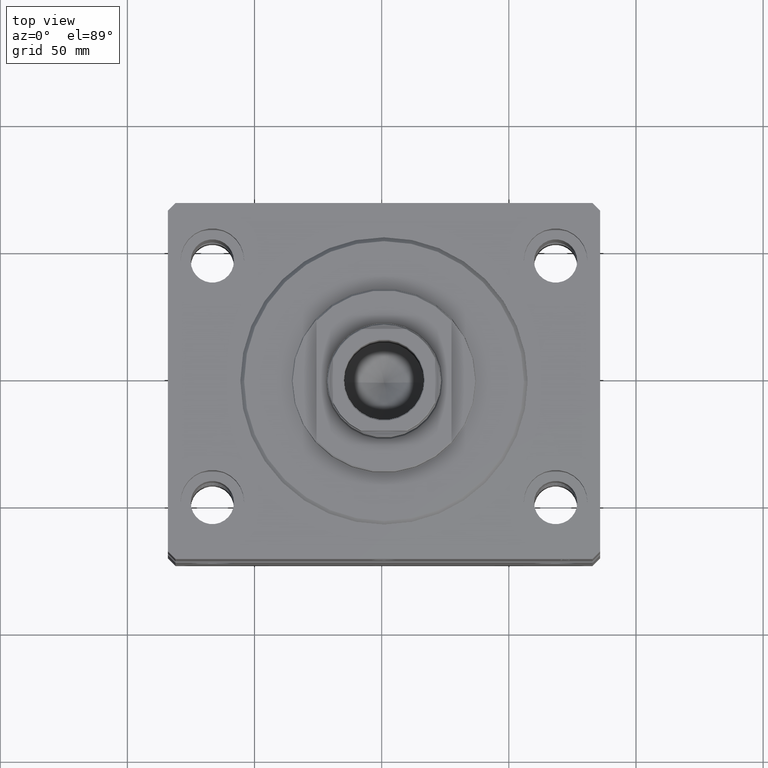
[diagram: clean part render]
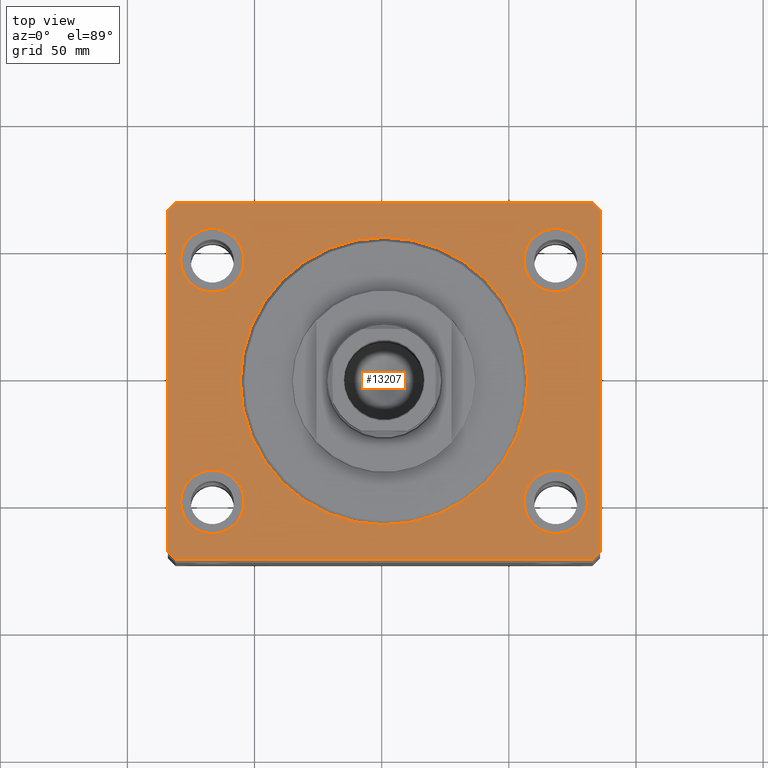
[diagram: same view with one face highlighted and labeled with its STEP entity id]
A machine part, top view. The second image highlights one B-rep face of the part: STEP entity #13207.
In plain terms, the highlighted planar face has unit normal (0, 0, 1).
Its self-contained STEP definition (entity closure, byte-faithful):
#125 = CARTESIAN_POINT ( 'NONE',  ( 0.000000000000000000, 0.000000000000000000, 0.000000000000000000 ) ) ;
#186 = VERTEX_POINT ( 'NONE', #40988 ) ;
#770 = VECTOR ( 'NONE', #31086, 1000.000000000000000 ) ;
#839 = EDGE_CURVE ( 'NONE', #12665, #21026, #46181, .T. ) ;
#1012 = VERTEX_POINT ( 'NONE', #44277 ) ;
#1359 = DIRECTION ( 'NONE',  ( 0.000000000000000000, 0.000000000000000000, 1.000000000000000000 ) ) ;
#1514 = ORIENTED_EDGE ( 'NONE', *, *, #35146, .T. ) ;
#1927 = ORIENTED_EDGE ( 'NONE', *, *, #42897, .T. ) ;
#2208 = ORIENTED_EDGE ( 'NONE', *, *, #6687, .F. ) ;
#2217 = VECTOR ( 'NONE', #18162, 1000.000000000000114 ) ;
#2267 = CIRCLE ( 'NONE', #18704, 12.49999999999999645 ) ;
#2579 = LINE ( 'NONE', #27136, #770 ) ;
#2654 = DIRECTION ( 'NONE',  ( 0.000000000000000000, 0.000000000000000000, 1.000000000000000000 ) ) ;
#2718 = VERTEX_POINT ( 'NONE', #33407 ) ;
#2836 = VECTOR ( 'NONE', #12691, 1000.000000000000000 ) ;
#2868 = CARTESIAN_POINT ( 'NONE',  ( 85.00000000000001421, -66.99999999999998579, 0.000000000000000000 ) ) ;
#2930 = DIRECTION ( 'NONE',  ( 0.7071067811865459074, 0.7071067811865491270, 0.000000000000000000 ) ) ;
#3393 = LINE ( 'NONE', #35195, #24265 ) ;
#3485 = AXIS2_PLACEMENT_3D ( 'NONE', #5072, #1359, #30779 ) ;
#3855 = LINE ( 'NONE', #39616, #2217 ) ;
#3929 = EDGE_CURVE ( 'NONE', #23910, #9966, #3393, .T. ) ;
#4049 = CARTESIAN_POINT ( 'NONE',  ( -85.00000000000001421, -67.00000000000000000, 0.000000000000000000 ) ) ;
#4174 = CIRCLE ( 'NONE', #34895, 12.49999999999999645 ) ;
#4256 = AXIS2_PLACEMENT_3D ( 'NONE', #33577, #5044, #36838 ) ;
#4886 = CIRCLE ( 'NONE', #39226, 12.49999999999999645 ) ;
#5044 = DIRECTION ( 'NONE',  ( 0.000000000000000000, 0.000000000000000000, 1.000000000000000000 ) ) ;
#5072 = CARTESIAN_POINT ( 'NONE',  ( 0.000000000000000000, 0.000000000000000000, 0.000000000000000000 ) ) ;
#5821 = DIRECTION ( 'NONE',  ( 0.000000000000000000, 0.000000000000000000, 1.000000000000000000 ) ) ;
#5980 = CARTESIAN_POINT ( 'NONE',  ( 80.00000000000000000, 47.50000000000001421, 0.000000000000000000 ) ) ;
#6125 = VERTEX_POINT ( 'NONE', #26899 ) ;
#6311 = EDGE_CURVE ( 'NONE', #30757, #31191, #4886, .T. ) ;
#6627 = DIRECTION ( 'NONE',  ( 1.000000000000000000, 0.000000000000000000, 0.000000000000000000 ) ) ;
#6687 = EDGE_CURVE ( 'NONE', #9549, #2718, #10919, .T. ) ;
#7177 = DIRECTION ( 'NONE',  ( 0.000000000000000000, 0.000000000000000000, 1.000000000000000000 ) ) ;
#7274 = CIRCLE ( 'NONE', #37117, 12.49999999999999645 ) ;
#7399 = EDGE_LOOP ( 'NONE', ( #41032, #38184 ) ) ;
#7576 = ORIENTED_EDGE ( 'NONE', *, *, #43532, .T. ) ;
#8207 = DIRECTION ( 'NONE',  ( 0.000000000000000000, 0.000000000000000000, 1.000000000000000000 ) ) ;
#8598 = PLANE ( 'NONE',  #3485 ) ;
#9519 = CIRCLE ( 'NONE', #4256, 56.50000000000000711 ) ;
#9520 = FACE_BOUND ( 'NONE', #7399, .T. ) ;
#9549 = VERTEX_POINT ( 'NONE', #20321 ) ;
#9611 = VERTEX_POINT ( 'NONE', #43756 ) ;
#9869 = VERTEX_POINT ( 'NONE', #5980 ) ;
#9966 = VERTEX_POINT ( 'NONE', #13496 ) ;
#10056 = CARTESIAN_POINT ( 'NONE',  ( 82.00000000000001421, -70.00000000000000000, 0.000000000000000000 ) ) ;
#10498 = EDGE_CURVE ( 'NONE', #9869, #6125, #4174, .T. ) ;
#10627 = CARTESIAN_POINT ( 'NONE',  ( -82.00000000000001421, -70.00000000000000000, 0.000000000000000000 ) ) ;
#10899 = DIRECTION ( 'NONE',  ( 0.000000000000000000, 0.000000000000000000, 1.000000000000000000 ) ) ;
#10919 = CIRCLE ( 'NONE', #31820, 56.50000000000000711 ) ;
#11484 = CARTESIAN_POINT ( 'NONE',  ( 67.50000000000000000, 47.50000000000001421, 0.000000000000000000 ) ) ;
#12124 = FACE_OUTER_BOUND ( 'NONE', #12692, .T. ) ;
#12304 = ORIENTED_EDGE ( 'NONE', *, *, #30689, .F. ) ;
#12665 = VERTEX_POINT ( 'NONE', #10056 ) ;
#12691 = DIRECTION ( 'NONE',  ( -0.7071067811865344721, 0.7071067811865606734, 0.000000000000000000 ) ) ;
#12692 = EDGE_LOOP ( 'NONE', ( #23483, #1514, #36673, #25044, #1927, #41418, #7576, #25814 ) ) ;
#13207 = ADVANCED_FACE ( 'NONE', ( #9520, #15868, #19137, #19827, #19375, #12124 ), #8598, .T. ) ;
#13496 = CARTESIAN_POINT ( 'NONE',  ( -85.00000000000001421, -67.00000000000000000, 0.000000000000000000 ) ) ;
#14187 = EDGE_CURVE ( 'NONE', #186, #28943, #7274, .T. ) ;
#14413 = DIRECTION ( 'NONE',  ( 1.000000000000000000, 0.000000000000000000, 0.000000000000000000 ) ) ;
#14436 = CARTESIAN_POINT ( 'NONE',  ( 67.50000000000000000, 47.50000000000001421, 0.000000000000000000 ) ) ;
#15868 = FACE_BOUND ( 'NONE', #16786, .T. ) ;
#16211 = CARTESIAN_POINT ( 'NONE',  ( 82.00000000000059686, 70.00000000000002842, 0.000000000000000000 ) ) ;
#16430 = CARTESIAN_POINT ( 'NONE',  ( 85.00000000000055422, 66.99999999999997158, 0.000000000000000000 ) ) ;
#16786 = EDGE_LOOP ( 'NONE', ( #25766, #28643 ) ) ;
#17660 = CIRCLE ( 'NONE', #29565, 12.49999999999999645 ) ;
#17690 = DIRECTION ( 'NONE',  ( 1.000000000000000000, 0.000000000000000000, 0.000000000000000000 ) ) ;
#17873 = EDGE_CURVE ( 'NONE', #37981, #9611, #41699, .T. ) ;
#18162 = DIRECTION ( 'NONE',  ( -0.7071067811865474617, -0.7071067811865474617, 0.000000000000000000 ) ) ;
#18359 = ORIENTED_EDGE ( 'NONE', *, *, #10498, .F. ) ;
#18606 = AXIS2_PLACEMENT_3D ( 'NONE', #21871, #32843, #17690 ) ;
#18704 = AXIS2_PLACEMENT_3D ( 'NONE', #25988, #8207, #22476 ) ;
#19137 = FACE_BOUND ( 'NONE', #45527, .T. ) ;
#19375 = FACE_BOUND ( 'NONE', #35259, .T. ) ;
#19827 = FACE_BOUND ( 'NONE', #33465, .T. ) ;
#19928 = LINE ( 'NONE', #16430, #2836 ) ;
#20321 = CARTESIAN_POINT ( 'NONE',  ( -56.50000000000000711, 6.919254415182546126E-15, 0.000000000000000000 ) ) ;
#20488 = EDGE_CURVE ( 'NONE', #31191, #30757, #2267, .T. ) ;
#21026 = VERTEX_POINT ( 'NONE', #2868 ) ;
#21049 = CARTESIAN_POINT ( 'NONE',  ( -67.50000000000000000, -47.50000000000000000, 0.000000000000000000 ) ) ;
#21371 = EDGE_CURVE ( 'NONE', #43187, #45032, #2579, .T. ) ;
#21530 = EDGE_CURVE ( 'NONE', #9611, #37981, #17660, .T. ) ;
#21871 = CARTESIAN_POINT ( 'NONE',  ( -67.50000000000000000, 47.50000000000000000, 0.000000000000000000 ) ) ;
#22476 = DIRECTION ( 'NONE',  ( 1.000000000000000000, 0.000000000000000000, 0.000000000000000000 ) ) ;
#23483 = ORIENTED_EDGE ( 'NONE', *, *, #21371, .T. ) ;
#23910 = VERTEX_POINT ( 'NONE', #37106 ) ;
#24265 = VECTOR ( 'NONE', #38459, 1000.000000000000000 ) ;
#24955 = CARTESIAN_POINT ( 'NONE',  ( 67.50000000000000000, -47.50000000000000000, 0.000000000000000000 ) ) ;
#25044 = ORIENTED_EDGE ( 'NONE', *, *, #40087, .T. ) ;
#25392 = CARTESIAN_POINT ( 'NONE',  ( -55.00000000000000711, -47.50000000000000000, 0.000000000000000000 ) ) ;
#25508 = VECTOR ( 'NONE', #31649, 1000.000000000000000 ) ;
#25745 = DIRECTION ( 'NONE',  ( 0.000000000000000000, 0.000000000000000000, 1.000000000000000000 ) ) ;
#25766 = ORIENTED_EDGE ( 'NONE', *, *, #31109, .F. ) ;
#25814 = ORIENTED_EDGE ( 'NONE', *, *, #29850, .T. ) ;
#25988 = CARTESIAN_POINT ( 'NONE',  ( -67.50000000000000000, -47.50000000000000000, 0.000000000000000000 ) ) ;
#26417 = VECTOR ( 'NONE', #2930, 1000.000000000000000 ) ;
#26899 = CARTESIAN_POINT ( 'NONE',  ( 55.00000000000000711, 47.50000000000001421, 0.000000000000000000 ) ) ;
#27136 = CARTESIAN_POINT ( 'NONE',  ( 82.00000000000059686, 70.00000000000002842, 0.000000000000000000 ) ) ;
#27137 = ORIENTED_EDGE ( 'NONE', *, *, #21530, .F. ) ;
#28643 = ORIENTED_EDGE ( 'NONE', *, *, #14187, .F. ) ;
#28855 = EDGE_CURVE ( 'NONE', #2718, #9549, #9519, .T. ) ;
#28943 = VERTEX_POINT ( 'NONE', #40813 ) ;
#28979 = CIRCLE ( 'NONE', #31945, 12.49999999999999645 ) ;
#29005 = CIRCLE ( 'NONE', #32741, 12.49999999999999645 ) ;
#29565 = AXIS2_PLACEMENT_3D ( 'NONE', #30712, #2654, #6627 ) ;
#29599 = CARTESIAN_POINT ( 'NONE',  ( -82.00000000000000000, 70.00000000000000000, 0.000000000000000000 ) ) ;
#29850 = EDGE_CURVE ( 'NONE', #34046, #43187, #19928, .T. ) ;
#30689 = EDGE_CURVE ( 'NONE', #6125, #9869, #28979, .T. ) ;
#30712 = CARTESIAN_POINT ( 'NONE',  ( -67.50000000000000000, 47.50000000000000000, 0.000000000000000000 ) ) ;
#30757 = VERTEX_POINT ( 'NONE', #25392 ) ;
#30779 = DIRECTION ( 'NONE',  ( 1.000000000000000000, 0.000000000000000000, -0.000000000000000000 ) ) ;
#31086 = DIRECTION ( 'NONE',  ( -1.000000000000000000, -1.692413147294439807E-16, 0.000000000000000000 ) ) ;
#31109 = EDGE_CURVE ( 'NONE', #28943, #186, #29005, .T. ) ;
#31191 = VERTEX_POINT ( 'NONE', #42051 ) ;
#31544 = DIRECTION ( 'NONE',  ( 0.000000000000000000, 0.000000000000000000, 1.000000000000000000 ) ) ;
#31649 = DIRECTION ( 'NONE',  ( 1.000000000000000000, 0.000000000000000000, 0.000000000000000000 ) ) ;
#31706 = CARTESIAN_POINT ( 'NONE',  ( -80.00000000000000000, 47.50000000000000000, 0.000000000000000000 ) ) ;
#31820 = AXIS2_PLACEMENT_3D ( 'NONE', #125, #32142, #14413 ) ;
#31945 = AXIS2_PLACEMENT_3D ( 'NONE', #14436, #10899, #39394 ) ;
#32142 = DIRECTION ( 'NONE',  ( 0.000000000000000000, 0.000000000000000000, 1.000000000000000000 ) ) ;
#32741 = AXIS2_PLACEMENT_3D ( 'NONE', #40668, #5821, #33427 ) ;
#32843 = DIRECTION ( 'NONE',  ( 0.000000000000000000, 0.000000000000000000, 1.000000000000000000 ) ) ;
#33407 = CARTESIAN_POINT ( 'NONE',  ( 56.50000000000000711, 0.000000000000000000, 0.000000000000000000 ) ) ;
#33427 = DIRECTION ( 'NONE',  ( 1.000000000000000000, 0.000000000000000000, 0.000000000000000000 ) ) ;
#33436 = DIRECTION ( 'NONE',  ( 3.935492064902608811E-15, 1.000000000000000000, 0.000000000000000000 ) ) ;
#33465 = EDGE_LOOP ( 'NONE', ( #27137, #41729 ) ) ;
#33577 = CARTESIAN_POINT ( 'NONE',  ( 0.000000000000000000, 0.000000000000000000, 0.000000000000000000 ) ) ;
#34046 = VERTEX_POINT ( 'NONE', #42063 ) ;
#34895 = AXIS2_PLACEMENT_3D ( 'NONE', #11484, #25745, #39976 ) ;
#35146 = EDGE_CURVE ( 'NONE', #45032, #23910, #3855, .T. ) ;
#35195 = CARTESIAN_POINT ( 'NONE',  ( -85.00000000000000000, 67.00000000000000000, 0.000000000000000000 ) ) ;
#35259 = EDGE_LOOP ( 'NONE', ( #38890, #2208 ) ) ;
#35288 = DIRECTION ( 'NONE',  ( 1.000000000000000000, 0.000000000000000000, 0.000000000000000000 ) ) ;
#35684 = DIRECTION ( 'NONE',  ( 1.000000000000000000, 0.000000000000000000, 0.000000000000000000 ) ) ;
#36673 = ORIENTED_EDGE ( 'NONE', *, *, #3929, .T. ) ;
#36838 = DIRECTION ( 'NONE',  ( 1.000000000000000000, 0.000000000000000000, 0.000000000000000000 ) ) ;
#37106 = CARTESIAN_POINT ( 'NONE',  ( -85.00000000000000000, 67.00000000000000000, 0.000000000000000000 ) ) ;
#37117 = AXIS2_PLACEMENT_3D ( 'NONE', #24955, #7177, #35684 ) ;
#37981 = VERTEX_POINT ( 'NONE', #31706 ) ;
#38184 = ORIENTED_EDGE ( 'NONE', *, *, #20488, .F. ) ;
#38459 = DIRECTION ( 'NONE',  ( -1.035655806553317576E-16, -1.000000000000000000, 0.000000000000000000 ) ) ;
#38664 = LINE ( 'NONE', #10627, #25508 ) ;
#38890 = ORIENTED_EDGE ( 'NONE', *, *, #28855, .F. ) ;
#39226 = AXIS2_PLACEMENT_3D ( 'NONE', #21049, #31544, #35288 ) ;
#39394 = DIRECTION ( 'NONE',  ( 1.000000000000000000, 0.000000000000000000, 0.000000000000000000 ) ) ;
#39616 = CARTESIAN_POINT ( 'NONE',  ( -82.00000000000000000, 70.00000000000000000, 0.000000000000000000 ) ) ;
#39976 = DIRECTION ( 'NONE',  ( 1.000000000000000000, 0.000000000000000000, 0.000000000000000000 ) ) ;
#40049 = LINE ( 'NONE', #4049, #44158 ) ;
#40087 = EDGE_CURVE ( 'NONE', #9966, #1012, #40049, .T. ) ;
#40668 = CARTESIAN_POINT ( 'NONE',  ( 67.50000000000000000, -47.50000000000000000, 0.000000000000000000 ) ) ;
#40682 = CARTESIAN_POINT ( 'NONE',  ( 85.00000000000001421, -66.99999999999998579, 0.000000000000000000 ) ) ;
#40813 = CARTESIAN_POINT ( 'NONE',  ( 80.00000000000000000, -47.50000000000000000, 0.000000000000000000 ) ) ;
#40988 = CARTESIAN_POINT ( 'NONE',  ( 55.00000000000000711, -47.50000000000000000, 0.000000000000000000 ) ) ;
#41032 = ORIENTED_EDGE ( 'NONE', *, *, #6311, .F. ) ;
#41418 = ORIENTED_EDGE ( 'NONE', *, *, #839, .T. ) ;
#41699 = CIRCLE ( 'NONE', #18606, 12.49999999999999645 ) ;
#41729 = ORIENTED_EDGE ( 'NONE', *, *, #17873, .F. ) ;
#41912 = VECTOR ( 'NONE', #33436, 1000.000000000000000 ) ;
#42051 = CARTESIAN_POINT ( 'NONE',  ( -80.00000000000000000, -47.50000000000000000, 0.000000000000000000 ) ) ;
#42063 = CARTESIAN_POINT ( 'NONE',  ( 85.00000000000055422, 66.99999999999997158, 0.000000000000000000 ) ) ;
#42190 = CARTESIAN_POINT ( 'NONE',  ( 82.00000000000001421, -70.00000000000000000, 0.000000000000000000 ) ) ;
#42897 = EDGE_CURVE ( 'NONE', #1012, #12665, #38664, .T. ) ;
#43187 = VERTEX_POINT ( 'NONE', #16211 ) ;
#43532 = EDGE_CURVE ( 'NONE', #21026, #34046, #44662, .T. ) ;
#43756 = CARTESIAN_POINT ( 'NONE',  ( -55.00000000000000711, 47.50000000000000000, 0.000000000000000000 ) ) ;
#44158 = VECTOR ( 'NONE', #44265, 1000.000000000000114 ) ;
#44265 = DIRECTION ( 'NONE',  ( 0.7071067811865474617, -0.7071067811865474617, 0.000000000000000000 ) ) ;
#44277 = CARTESIAN_POINT ( 'NONE',  ( -82.00000000000001421, -70.00000000000000000, 0.000000000000000000 ) ) ;
#44662 = LINE ( 'NONE', #40682, #41912 ) ;
#45032 = VERTEX_POINT ( 'NONE', #29599 ) ;
#45527 = EDGE_LOOP ( 'NONE', ( #18359, #12304 ) ) ;
#46181 = LINE ( 'NONE', #42190, #26417 ) ;